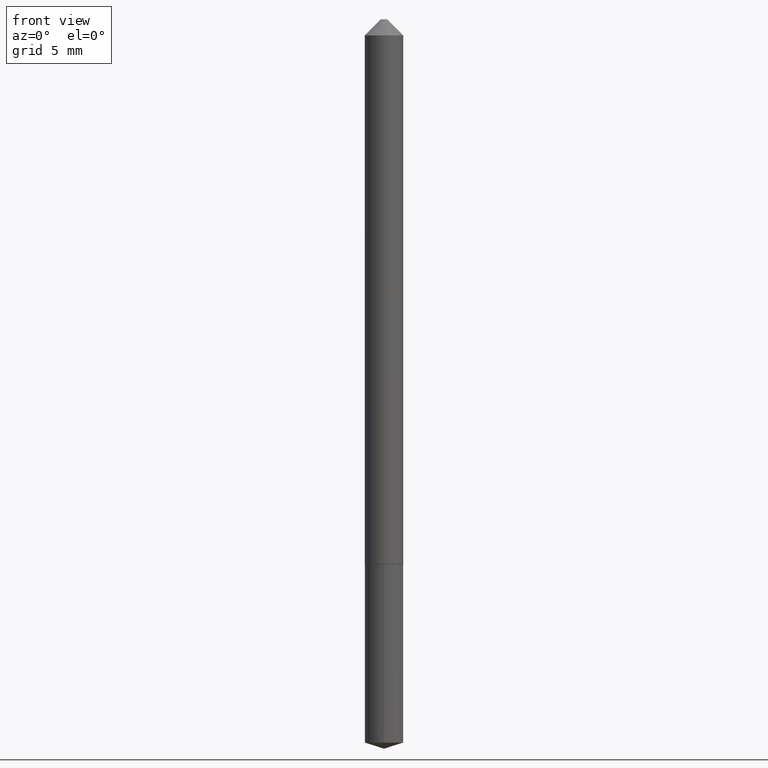
[diagram: clean part render]
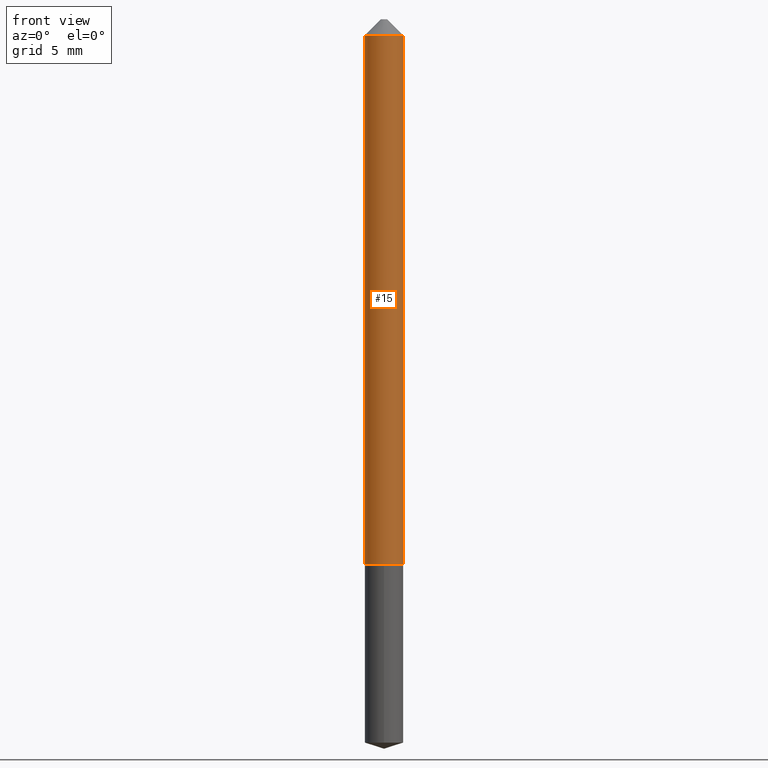
[diagram: same view with one face highlighted and labeled with its STEP entity id]
A machine part, front view. The second image highlights one B-rep face of the part: STEP entity #15.
In plain terms, the highlighted cylindrical surface (edge-blend (fillet) strip) has radius 0.95 mm, axis along (-0, 0, 1).
Its self-contained STEP definition (entity closure, byte-faithful):
#3 = CARTESIAN_POINT ( 'NONE',  ( -0.03740000000000007208, 2.657429831742779816E-16, -1.839681723755338193E-30 ) ) ;
#8 = CARTESIAN_POINT ( 'NONE',  ( 0.000000000000000000, 0.000000000000000000, 0.000000000000000000 ) ) ;
#15 = ADVANCED_FACE ( 'NONE', ( #368 ), #194, .T. ) ;
#16 = EDGE_LOOP ( 'NONE', ( #305, #38, #373, #20 ) ) ;
#20 = ORIENTED_EDGE ( 'NONE', *, *, #247, .F. ) ;
#27 = CARTESIAN_POINT ( 'NONE',  ( 7.642090019328601786E-31, -1.091087918388490144E-16, -0.03125000000000020123 ) ) ;
#35 = CARTESIAN_POINT ( 'NONE',  ( -0.03740000000000013453, -3.429990013991191210E-15, -1.058499999999999996 ) ) ;
#38 = ORIENTED_EDGE ( 'NONE', *, *, #240, .T. ) ;
#57 = LINE ( 'NONE', #207, #369 ) ;
#73 = VERTEX_POINT ( 'NONE', #107 ) ;
#78 = CARTESIAN_POINT ( 'NONE',  ( 2.588528731346966904E-29, -3.695732997165469783E-15, -1.058499999999999996 ) ) ;
#89 = DIRECTION ( 'NONE',  ( -2.445468806185136877E-29, 3.491481338843145188E-15, 1.000000000000000000 ) ) ;
#107 = CARTESIAN_POINT ( 'NONE',  ( -0.03740000000000000269, -1.636677911327879883E-15, -0.03125000000000020123 ) ) ;
#118 = CIRCLE ( 'NONE', #159, 0.03740000000000000269 ) ;
#136 = CARTESIAN_POINT ( 'NONE',  ( 0.03740000000000013453, -3.956895801310936972E-15, -1.058499999999999996 ) ) ;
#144 = DIRECTION ( 'NONE',  ( -2.445468806185136597E-29, 3.491481338843145583E-15, 1.000000000000000000 ) ) ;
#151 = EDGE_CURVE ( 'NONE', #309, #225, #57, .T. ) ;
#159 = AXIS2_PLACEMENT_3D ( 'NONE', #27, #144, #321 ) ;
#167 = CARTESIAN_POINT ( 'NONE',  ( 0.03740000000000000269, -3.702715959843154023E-16, -0.03125000000000020123 ) ) ;
#185 = AXIS2_PLACEMENT_3D ( 'NONE', #8, #344, #245 ) ;
#194 = CYLINDRICAL_SURFACE ( 'NONE', #185, 0.03740000000000007208 ) ;
#196 = VECTOR ( 'NONE', #89, 39.37007874015748143 ) ;
#207 = CARTESIAN_POINT ( 'NONE',  ( 0.03740000000000007208, -2.611628041454668440E-16, 1.823690114147683585E-30 ) ) ;
#225 = VERTEX_POINT ( 'NONE', #167 ) ;
#240 = EDGE_CURVE ( 'NONE', #282, #309, #306, .T. ) ;
#245 = DIRECTION ( 'NONE',  ( 1.000000000000000000, -6.982962677686265922E-15, 4.876176775795935793E-29 ) ) ;
#247 = EDGE_CURVE ( 'NONE', #73, #225, #118, .T. ) ;
#256 = DIRECTION ( 'NONE',  ( -2.445468806185136597E-29, 3.491481338843145583E-15, 1.000000000000000000 ) ) ;
#268 = LINE ( 'NONE', #3, #196 ) ;
#282 = VERTEX_POINT ( 'NONE', #35 ) ;
#297 = AXIS2_PLACEMENT_3D ( 'NONE', #78, #256, #324 ) ;
#305 = ORIENTED_EDGE ( 'NONE', *, *, #332, .F. ) ;
#306 = CIRCLE ( 'NONE', #297, 0.03740000000000013453 ) ;
#309 = VERTEX_POINT ( 'NONE', #136 ) ;
#321 = DIRECTION ( 'NONE',  ( 1.000000000000000000, -6.982962677686266711E-15, 0.000000000000000000 ) ) ;
#324 = DIRECTION ( 'NONE',  ( 1.000000000000000000, -6.982962677686263555E-15, 0.000000000000000000 ) ) ;
#332 = EDGE_CURVE ( 'NONE', #282, #73, #268, .T. ) ;
#344 = DIRECTION ( 'NONE',  ( -2.445468806185136597E-29, 3.491481338843145583E-15, 1.000000000000000000 ) ) ;
#349 = DIRECTION ( 'NONE',  ( -2.445468806185136877E-29, 3.491481338843145188E-15, 1.000000000000000000 ) ) ;
#368 = FACE_OUTER_BOUND ( 'NONE', #16, .T. ) ;
#369 = VECTOR ( 'NONE', #349, 39.37007874015748143 ) ;
#373 = ORIENTED_EDGE ( 'NONE', *, *, #151, .T. ) ;